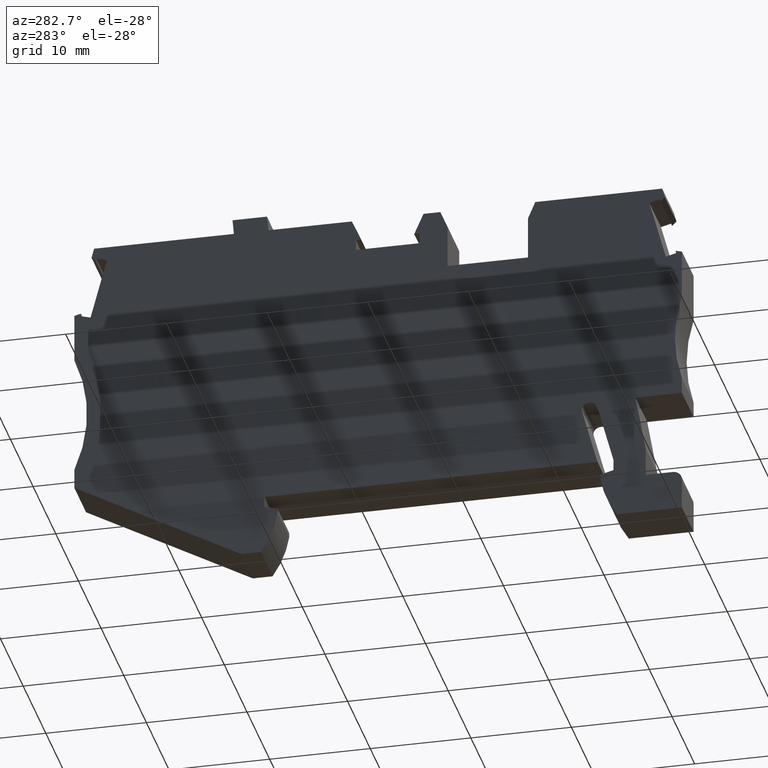
[diagram: clean part render]
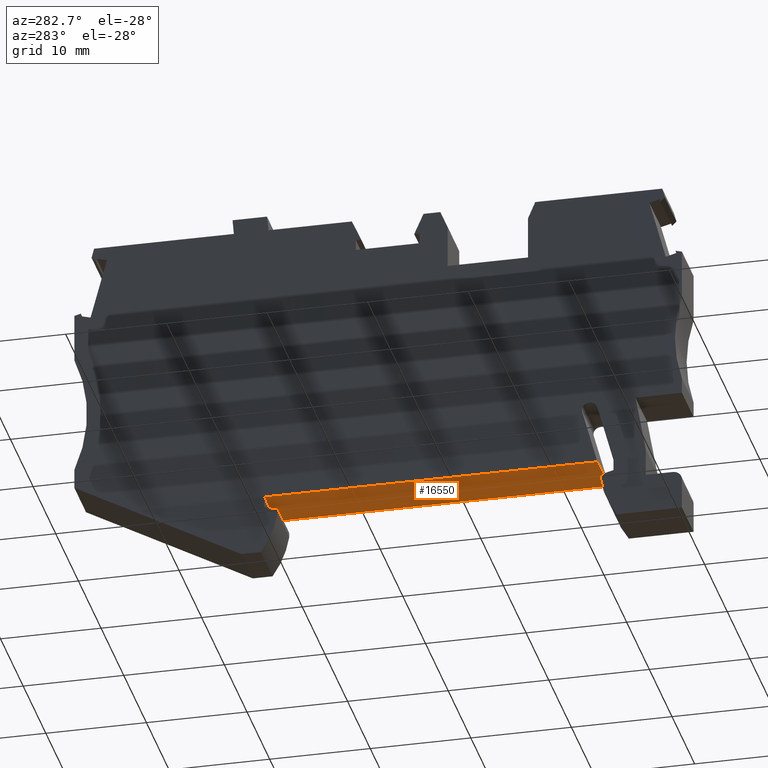
[diagram: same view with one face highlighted and labeled with its STEP entity id]
A machine part, auxiliary view. The second image highlights one B-rep face of the part: STEP entity #16550.
In plain terms, the highlighted planar face has unit normal (0, -0, -1).
Its self-contained STEP definition (entity closure, byte-faithful):
#3040=CARTESIAN_POINT('',(19.1321672216756,-38.4000000000014,
53.6699999999973));
#3050=VERTEX_POINT('',#3040);
#3080=CARTESIAN_POINT('',(-34.2873043683398,-38.4000000000014,
53.6699999999908));
#3090=DIRECTION('',(-1.,0.,-1.20466137065733E-13));
#3100=VECTOR('',#3090,1.);
#3110=LINE('',#3080,#3100);
#3120=CARTESIAN_POINT('',(-13.9678327783249,-38.4000000000014,
53.6699999999933));
#3130=VERTEX_POINT('',#3120);
#3140=EDGE_CURVE('',#3050,#3130,#3110,.T.);
#8270=CARTESIAN_POINT('',(-13.9678327783249,-38.4000000000014,
48.5199999999973));
#8280=VERTEX_POINT('',#8270);
#8310=CARTESIAN_POINT('',(-34.2873043683398,-38.4000000000014,
48.5199999999973));
#8320=DIRECTION('',(-1.,0.,0.));
#8330=VECTOR('',#8320,1.);
#8340=LINE('',#8310,#8330);
#8350=CARTESIAN_POINT('',(19.1321672216756,-38.4000000000014,
48.5199999999973));
#8360=VERTEX_POINT('',#8350);
#8370=EDGE_CURVE('',#8360,#8280,#8340,.T.);
#16230=CARTESIAN_POINT('',(19.1321672216756,-38.4000000000014,53.67));
#16240=DIRECTION('',(0.,0.,-1.));
#16250=VECTOR('',#16240,1.);
#16260=LINE('',#16230,#16250);
#16270=EDGE_CURVE('',#3050,#8360,#16260,.T.);
#16390=CARTESIAN_POINT('',(3.71966722167661,-38.4000000000014,
53.6699999999942));
#16400=DIRECTION('',(-0.,-1.,-0.));
#16410=DIRECTION('',(-1.,0.,0.));
#16420=AXIS2_PLACEMENT_3D('',#16390,#16400,#16410);
#16430=PLANE('',#16420);
#16440=ORIENTED_EDGE('',*,*,#3140,.T.);
#16450=ORIENTED_EDGE('',*,*,#16270,.F.);
#16460=ORIENTED_EDGE('',*,*,#8370,.F.);
#16470=CARTESIAN_POINT('',(-13.9678327783249,-38.4000000000014,53.67));
#16480=DIRECTION('',(0.,0.,1.));
#16490=VECTOR('',#16480,1.);
#16500=LINE('',#16470,#16490);
#16510=EDGE_CURVE('',#8280,#3130,#16500,.T.);
#16520=ORIENTED_EDGE('',*,*,#16510,.F.);
#16530=EDGE_LOOP('',(#16520,#16460,#16450,#16440));
#16540=FACE_OUTER_BOUND('',#16530,.T.);
#16550=ADVANCED_FACE('',(#16540),#16430,.T.);